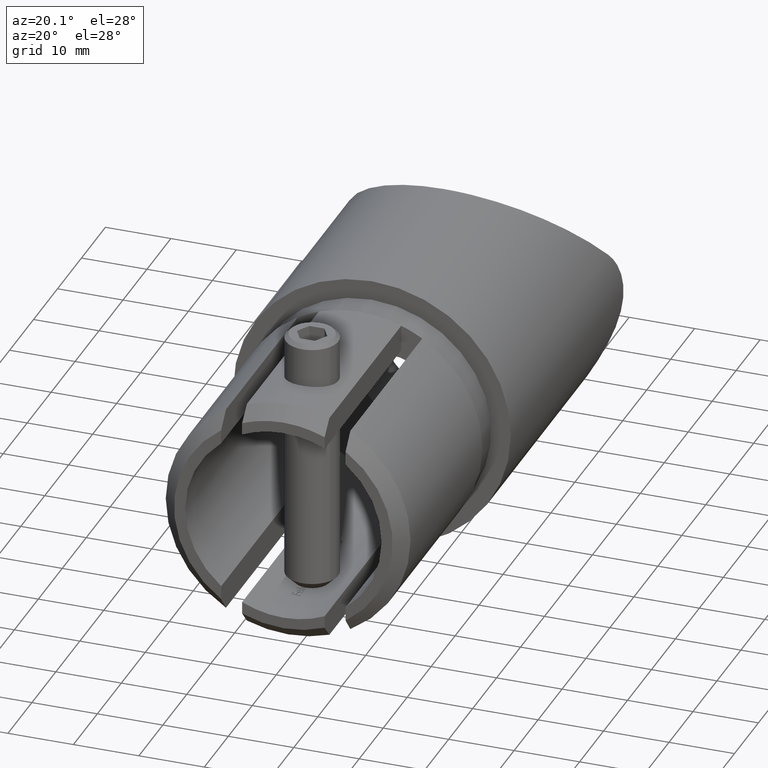
[diagram: clean part render]
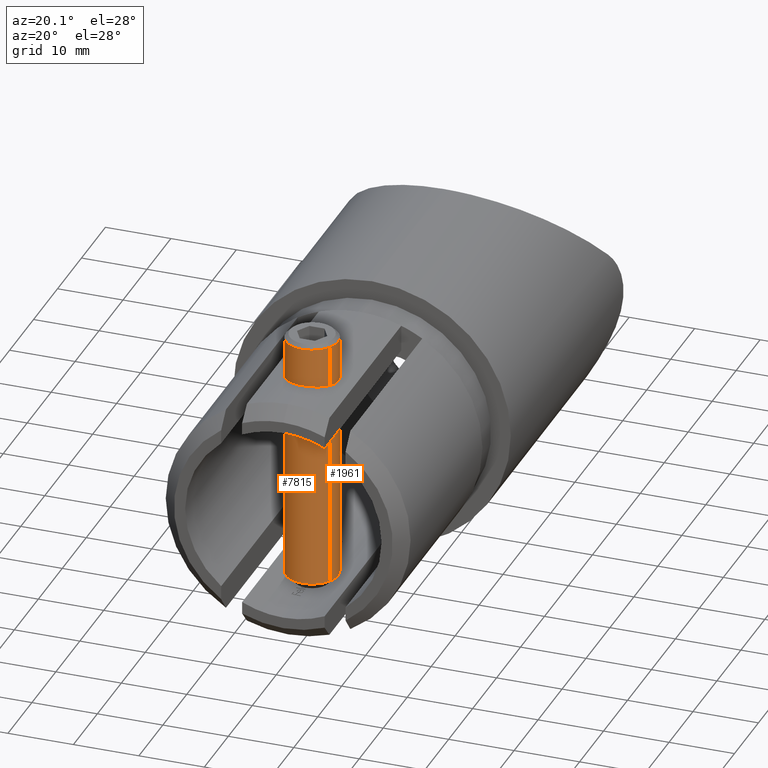
[diagram: same view with one multi-face feature highlighted, each face labeled with its STEP entity id]
A machine part, auxiliary view. The highlighted faces form ONE feature: a constant-radius fillet chain: 2 tangent blend faces with common blend radius 4 mm. The faces share edges in the B-rep.
Their STEP definitions:
[1] entity #1961 (Cylinder):
#95 = ORIENTED_EDGE ( 'NONE', *, *, #2735, .T. ) ;
#420 = CARTESIAN_POINT ( 'NONE',  ( 39.39999999999999900, 4.898587196589412800E-016, -4.000000000000000000 ) ) ;
#853 = EDGE_CURVE ( 'NONE', #5465, #1900, #7382, .T. ) ;
#1070 = DIRECTION ( 'NONE',  ( -1.000000000000000000, -0.0000000000000000000, -0.0000000000000000000 ) ) ;
#1424 = AXIS2_PLACEMENT_3D ( 'NONE', #4660, #13228, #5596 ) ;
#1437 = ORIENTED_EDGE ( 'NONE', *, *, #4465, .T. ) ;
#1621 = CARTESIAN_POINT ( 'NONE',  ( 1.399999999999984400, 4.000000000000000000, 0.0000000000000000000 ) ) ;
#1900 = VERTEX_POINT ( 'NONE', #2989 ) ;
#1961 = ADVANCED_FACE ( 'NONE', ( #9029 ), #2856, .T. ) ;
#2440 = VERTEX_POINT ( 'NONE', #1621 ) ;
#2448 = DIRECTION ( 'NONE',  ( -1.000000000000000000, 0.0000000000000000000, 0.0000000000000000000 ) ) ;
#2513 = VECTOR ( 'NONE', #1070, 1000.000000000000000 ) ;
#2735 = EDGE_CURVE ( 'NONE', #7366, #9287, #12393, .T. ) ;
#2856 = CYLINDRICAL_SURFACE ( 'NONE', #7228, 4.000000000000000000 ) ;
#2989 = CARTESIAN_POINT ( 'NONE',  ( 1.399999999999984400, 0.0000000000000000000, 4.000000000000000000 ) ) ;
#3385 = CARTESIAN_POINT ( 'NONE',  ( 1.399999999999984400, -4.538988261647280400E-017, 0.0000000000000000000 ) ) ;
#3409 = AXIS2_PLACEMENT_3D ( 'NONE', #3385, #9833, #11997 ) ;
#3824 = EDGE_CURVE ( 'NONE', #1900, #2440, #5182, .T. ) ;
#3944 = AXIS2_PLACEMENT_3D ( 'NONE', #11180, #2448, #5756 ) ;
#4015 = DIRECTION ( 'NONE',  ( -1.000000000000000000, -0.0000000000000000000, -0.0000000000000000000 ) ) ;
#4164 = CARTESIAN_POINT ( 'NONE',  ( 40.00000000000000000, 0.0000000000000000000, 0.0000000000000000000 ) ) ;
#4371 = CARTESIAN_POINT ( 'NONE',  ( 40.00000000000000000, 4.898587196589412800E-016, -4.000000000000000000 ) ) ;
#4465 = EDGE_CURVE ( 'NONE', #5465, #7366, #12533, .T. ) ;
#4660 = CARTESIAN_POINT ( 'NONE',  ( 1.399999999999984400, -4.538988261647280400E-017, 0.0000000000000000000 ) ) ;
#5182 = CIRCLE ( 'NONE', #1424, 4.000000000000000000 ) ;
#5465 = VERTEX_POINT ( 'NONE', #5785 ) ;
#5596 = DIRECTION ( 'NONE',  ( -5.421010862427522200E-017, -1.000000000000000000, 0.0000000000000000000 ) ) ;
#5756 = DIRECTION ( 'NONE',  ( 0.0000000000000000000, 0.0000000000000000000, -1.000000000000000000 ) ) ;
#5785 = CARTESIAN_POINT ( 'NONE',  ( 39.39999999999999900, 0.0000000000000000000, 4.000000000000000000 ) ) ;
#6309 = DIRECTION ( 'NONE',  ( 0.0000000000000000000, 0.0000000000000000000, 1.000000000000000000 ) ) ;
#6570 = EDGE_CURVE ( 'NONE', #2440, #9287, #10635, .T. ) ;
#6789 = CARTESIAN_POINT ( 'NONE',  ( 1.399999999999984400, 4.898587196589412800E-016, -4.000000000000000000 ) ) ;
#7228 = AXIS2_PLACEMENT_3D ( 'NONE', #4164, #13840, #6309 ) ;
#7366 = VERTEX_POINT ( 'NONE', #420 ) ;
#7382 = LINE ( 'NONE', #10319, #12764 ) ;
#7501 = ORIENTED_EDGE ( 'NONE', *, *, #6570, .F. ) ;
#8017 = ORIENTED_EDGE ( 'NONE', *, *, #3824, .F. ) ;
#8620 = EDGE_LOOP ( 'NONE', ( #1437, #95, #7501, #8017, #12247 ) ) ;
#9029 = FACE_OUTER_BOUND ( 'NONE', #8620, .T. ) ;
#9287 = VERTEX_POINT ( 'NONE', #6789 ) ;
#9833 = DIRECTION ( 'NONE',  ( -1.000000000000000000, 3.242134472605236300E-017, -0.0000000000000000000 ) ) ;
#10319 = CARTESIAN_POINT ( 'NONE',  ( 40.00000000000000000, 0.0000000000000000000, 4.000000000000000000 ) ) ;
#10635 = CIRCLE ( 'NONE', #3409, 4.000000000000000000 ) ;
#11180 = CARTESIAN_POINT ( 'NONE',  ( 39.39999999999999900, 0.0000000000000000000, 0.0000000000000000000 ) ) ;
#11997 = DIRECTION ( 'NONE',  ( -5.421010862427522200E-017, -1.000000000000000000, 0.0000000000000000000 ) ) ;
#12247 = ORIENTED_EDGE ( 'NONE', *, *, #853, .F. ) ;
#12393 = LINE ( 'NONE', #4371, #2513 ) ;
#12533 = CIRCLE ( 'NONE', #3944, 4.000000000000000000 ) ;
#12764 = VECTOR ( 'NONE', #4015, 1000.000000000000000 ) ;
#13228 = DIRECTION ( 'NONE',  ( -1.000000000000000000, 3.242134472605236300E-017, -0.0000000000000000000 ) ) ;
#13840 = DIRECTION ( 'NONE',  ( -1.000000000000000000, -0.0000000000000000000, -0.0000000000000000000 ) ) ;
[2] entity #7815 (Cylinder):
#312 = CARTESIAN_POINT ( 'NONE',  ( 40.00000000000000000, 0.0000000000000000000, 0.0000000000000000000 ) ) ;
#384 = EDGE_CURVE ( 'NONE', #9287, #3812, #12946, .T. ) ;
#420 = CARTESIAN_POINT ( 'NONE',  ( 39.39999999999999900, 4.898587196589412800E-016, -4.000000000000000000 ) ) ;
#749 = ORIENTED_EDGE ( 'NONE', *, *, #384, .F. ) ;
#853 = EDGE_CURVE ( 'NONE', #5465, #1900, #7382, .T. ) ;
#1070 = DIRECTION ( 'NONE',  ( -1.000000000000000000, -0.0000000000000000000, -0.0000000000000000000 ) ) ;
#1900 = VERTEX_POINT ( 'NONE', #2989 ) ;
#2513 = VECTOR ( 'NONE', #1070, 1000.000000000000000 ) ;
#2673 = AXIS2_PLACEMENT_3D ( 'NONE', #12156, #7919, #5747 ) ;
#2735 = EDGE_CURVE ( 'NONE', #7366, #9287, #12393, .T. ) ;
#2989 = CARTESIAN_POINT ( 'NONE',  ( 1.399999999999984400, 0.0000000000000000000, 4.000000000000000000 ) ) ;
#3350 = DIRECTION ( 'NONE',  ( -1.000000000000000000, -0.0000000000000000000, -0.0000000000000000000 ) ) ;
#3459 = CIRCLE ( 'NONE', #3691, 4.000000000000000000 ) ;
#3525 = AXIS2_PLACEMENT_3D ( 'NONE', #9056, #4868, #10140 ) ;
#3571 = EDGE_CURVE ( 'NONE', #7366, #5465, #6334, .T. ) ;
#3691 = AXIS2_PLACEMENT_3D ( 'NONE', #8681, #9757, #7524 ) ;
#3812 = VERTEX_POINT ( 'NONE', #4148 ) ;
#4015 = DIRECTION ( 'NONE',  ( -1.000000000000000000, -0.0000000000000000000, -0.0000000000000000000 ) ) ;
#4148 = CARTESIAN_POINT ( 'NONE',  ( 1.399999999999984400, -4.000000000000000000, 4.898587196589412800E-016 ) ) ;
#4371 = CARTESIAN_POINT ( 'NONE',  ( 40.00000000000000000, 4.898587196589412800E-016, -4.000000000000000000 ) ) ;
#4431 = DIRECTION ( 'NONE',  ( 0.0000000000000000000, 0.0000000000000000000, 1.000000000000000000 ) ) ;
#4529 = EDGE_LOOP ( 'NONE', ( #4907, #13620, #12567, #9433, #749 ) ) ;
#4868 = DIRECTION ( 'NONE',  ( -1.000000000000000000, 3.242134472605236300E-017, -0.0000000000000000000 ) ) ;
#4907 = ORIENTED_EDGE ( 'NONE', *, *, #2735, .F. ) ;
#5465 = VERTEX_POINT ( 'NONE', #5785 ) ;
#5747 = DIRECTION ( 'NONE',  ( 0.0000000000000000000, 0.0000000000000000000, -1.000000000000000000 ) ) ;
#5785 = CARTESIAN_POINT ( 'NONE',  ( 39.39999999999999900, 0.0000000000000000000, 4.000000000000000000 ) ) ;
#6156 = FACE_OUTER_BOUND ( 'NONE', #4529, .T. ) ;
#6334 = CIRCLE ( 'NONE', #2673, 4.000000000000000000 ) ;
#6666 = CYLINDRICAL_SURFACE ( 'NONE', #8601, 4.000000000000000000 ) ;
#6789 = CARTESIAN_POINT ( 'NONE',  ( 1.399999999999984400, 4.898587196589412800E-016, -4.000000000000000000 ) ) ;
#7366 = VERTEX_POINT ( 'NONE', #420 ) ;
#7382 = LINE ( 'NONE', #10319, #12764 ) ;
#7524 = DIRECTION ( 'NONE',  ( -5.421010862427522200E-017, -1.000000000000000000, 0.0000000000000000000 ) ) ;
#7815 = ADVANCED_FACE ( 'NONE', ( #6156 ), #6666, .T. ) ;
#7919 = DIRECTION ( 'NONE',  ( -1.000000000000000000, 0.0000000000000000000, 0.0000000000000000000 ) ) ;
#8601 = AXIS2_PLACEMENT_3D ( 'NONE', #312, #3350, #4431 ) ;
#8681 = CARTESIAN_POINT ( 'NONE',  ( 1.399999999999984400, -4.538988261647280400E-017, 0.0000000000000000000 ) ) ;
#9056 = CARTESIAN_POINT ( 'NONE',  ( 1.399999999999984400, -4.538988261647280400E-017, 0.0000000000000000000 ) ) ;
#9287 = VERTEX_POINT ( 'NONE', #6789 ) ;
#9433 = ORIENTED_EDGE ( 'NONE', *, *, #9514, .F. ) ;
#9514 = EDGE_CURVE ( 'NONE', #3812, #1900, #3459, .T. ) ;
#9757 = DIRECTION ( 'NONE',  ( -1.000000000000000000, 3.242134472605236300E-017, -0.0000000000000000000 ) ) ;
#10140 = DIRECTION ( 'NONE',  ( -5.421010862427522200E-017, -1.000000000000000000, 0.0000000000000000000 ) ) ;
#10319 = CARTESIAN_POINT ( 'NONE',  ( 40.00000000000000000, 0.0000000000000000000, 4.000000000000000000 ) ) ;
#12156 = CARTESIAN_POINT ( 'NONE',  ( 39.39999999999999900, 0.0000000000000000000, 0.0000000000000000000 ) ) ;
#12393 = LINE ( 'NONE', #4371, #2513 ) ;
#12567 = ORIENTED_EDGE ( 'NONE', *, *, #853, .T. ) ;
#12764 = VECTOR ( 'NONE', #4015, 1000.000000000000000 ) ;
#12946 = CIRCLE ( 'NONE', #3525, 4.000000000000000000 ) ;
#13620 = ORIENTED_EDGE ( 'NONE', *, *, #3571, .T. ) ;